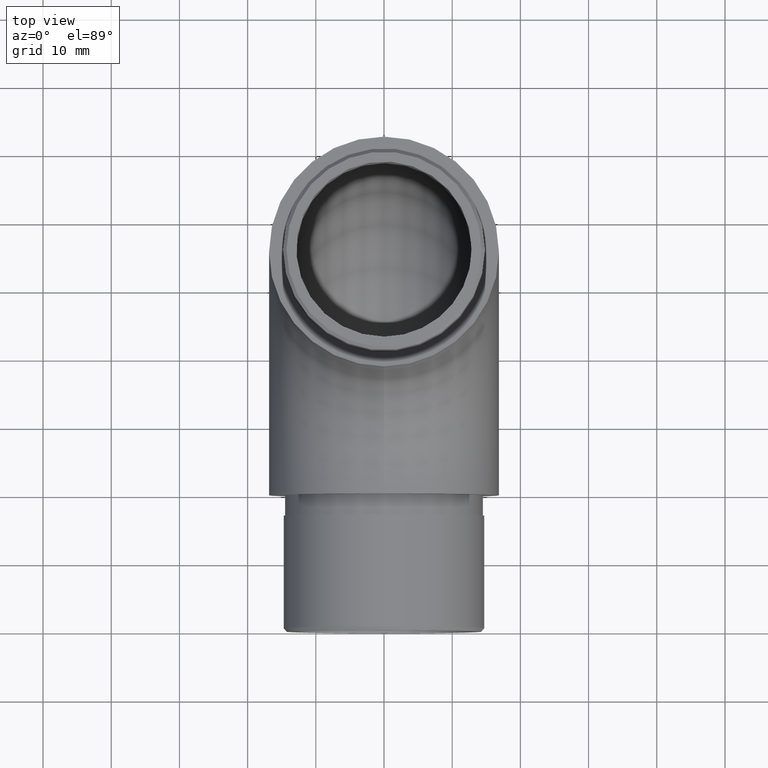
[diagram: clean part render]
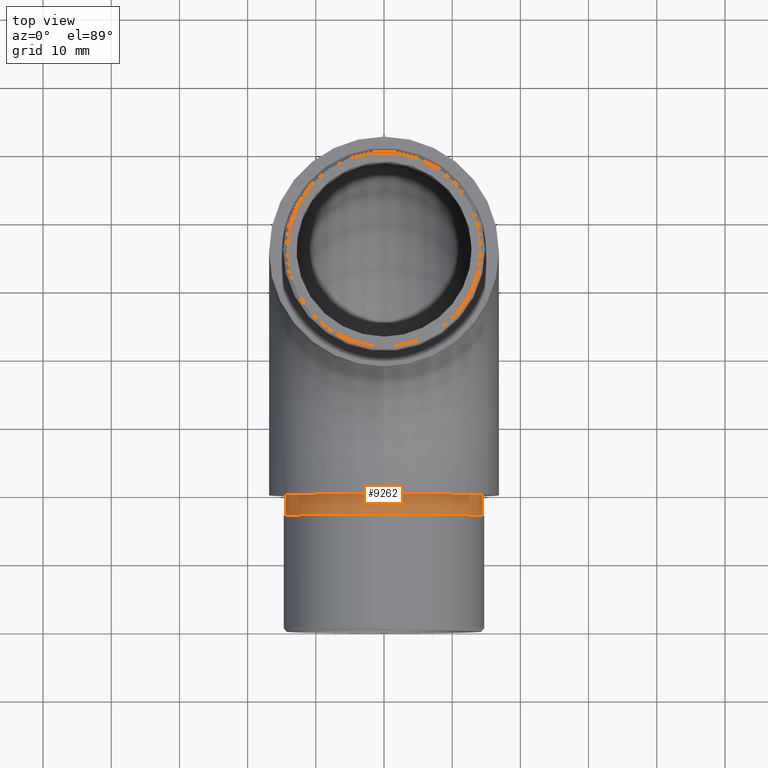
[diagram: same view with one face highlighted and labeled with its STEP entity id]
A machine part, top view. The second image highlights one B-rep face of the part: STEP entity #9262.
In plain terms, the highlighted cylindrical surface (bore or boss wall) has radius 14.6 mm, axis along (-0, 1, -0).
Its self-contained STEP definition (entity closure, byte-faithful):
#244 = AXIS2_PLACEMENT_3D ( 'NONE', #3774, #8057, #3739 ) ;
#754 = ORIENTED_EDGE ( 'NONE', *, *, #4475, .T. ) ;
#761 = CYLINDRICAL_SURFACE ( 'NONE', #244, 14.60000000000000100 ) ;
#812 = CARTESIAN_POINT ( 'NONE',  ( 0.0000000000000000000, 0.0000000000000000000, 31.45000000000000600 ) ) ;
#1927 = EDGE_CURVE ( 'NONE', #8604, #8604, #5981, .T. ) ;
#2164 = FACE_OUTER_BOUND ( 'NONE', #4152, .T. ) ;
#2682 = DIRECTION ( 'NONE',  ( 0.0000000000000000000, 0.0000000000000000000, -1.000000000000000000 ) ) ;
#3739 = DIRECTION ( 'NONE',  ( 0.0000000000000000000, 0.0000000000000000000, 1.000000000000000000 ) ) ;
#3774 = CARTESIAN_POINT ( 'NONE',  ( 0.0000000000000000000, -3.000000000000000000, 16.85000000000000500 ) ) ;
#4152 = EDGE_LOOP ( 'NONE', ( #754 ) ) ;
#4366 = CARTESIAN_POINT ( 'NONE',  ( 0.0000000000000000000, -3.000000000000000000, 16.85000000000000500 ) ) ;
#4475 = EDGE_CURVE ( 'NONE', #6566, #6566, #7165, .T. ) ;
#4923 = FACE_OUTER_BOUND ( 'NONE', #11165, .T. ) ;
#5098 = AXIS2_PLACEMENT_3D ( 'NONE', #8220, #7457, #10304 ) ;
#5981 = CIRCLE ( 'NONE', #7035, 14.60000000000000100 ) ;
#6566 = VERTEX_POINT ( 'NONE', #812 ) ;
#7035 = AXIS2_PLACEMENT_3D ( 'NONE', #4366, #8759, #2682 ) ;
#7165 = CIRCLE ( 'NONE', #5098, 14.60000000000000100 ) ;
#7438 = ORIENTED_EDGE ( 'NONE', *, *, #1927, .F. ) ;
#7457 = DIRECTION ( 'NONE',  ( -0.0000000000000000000, -1.000000000000000000, -0.0000000000000000000 ) ) ;
#7801 = CARTESIAN_POINT ( 'NONE',  ( 0.0000000000000000000, -3.000000000000000000, 2.250000000000001800 ) ) ;
#8057 = DIRECTION ( 'NONE',  ( -0.0000000000000000000, 1.000000000000000000, -0.0000000000000000000 ) ) ;
#8220 = CARTESIAN_POINT ( 'NONE',  ( 0.0000000000000000000, 0.0000000000000000000, 16.85000000000000500 ) ) ;
#8604 = VERTEX_POINT ( 'NONE', #7801 ) ;
#8759 = DIRECTION ( 'NONE',  ( 0.0000000000000000000, -1.000000000000000000, 0.0000000000000000000 ) ) ;
#9262 = ADVANCED_FACE ( 'NONE', ( #4923, #2164 ), #761, .T. ) ;
#10304 = DIRECTION ( 'NONE',  ( 0.0000000000000000000, 0.0000000000000000000, 1.000000000000000000 ) ) ;
#11165 = EDGE_LOOP ( 'NONE', ( #7438 ) ) ;